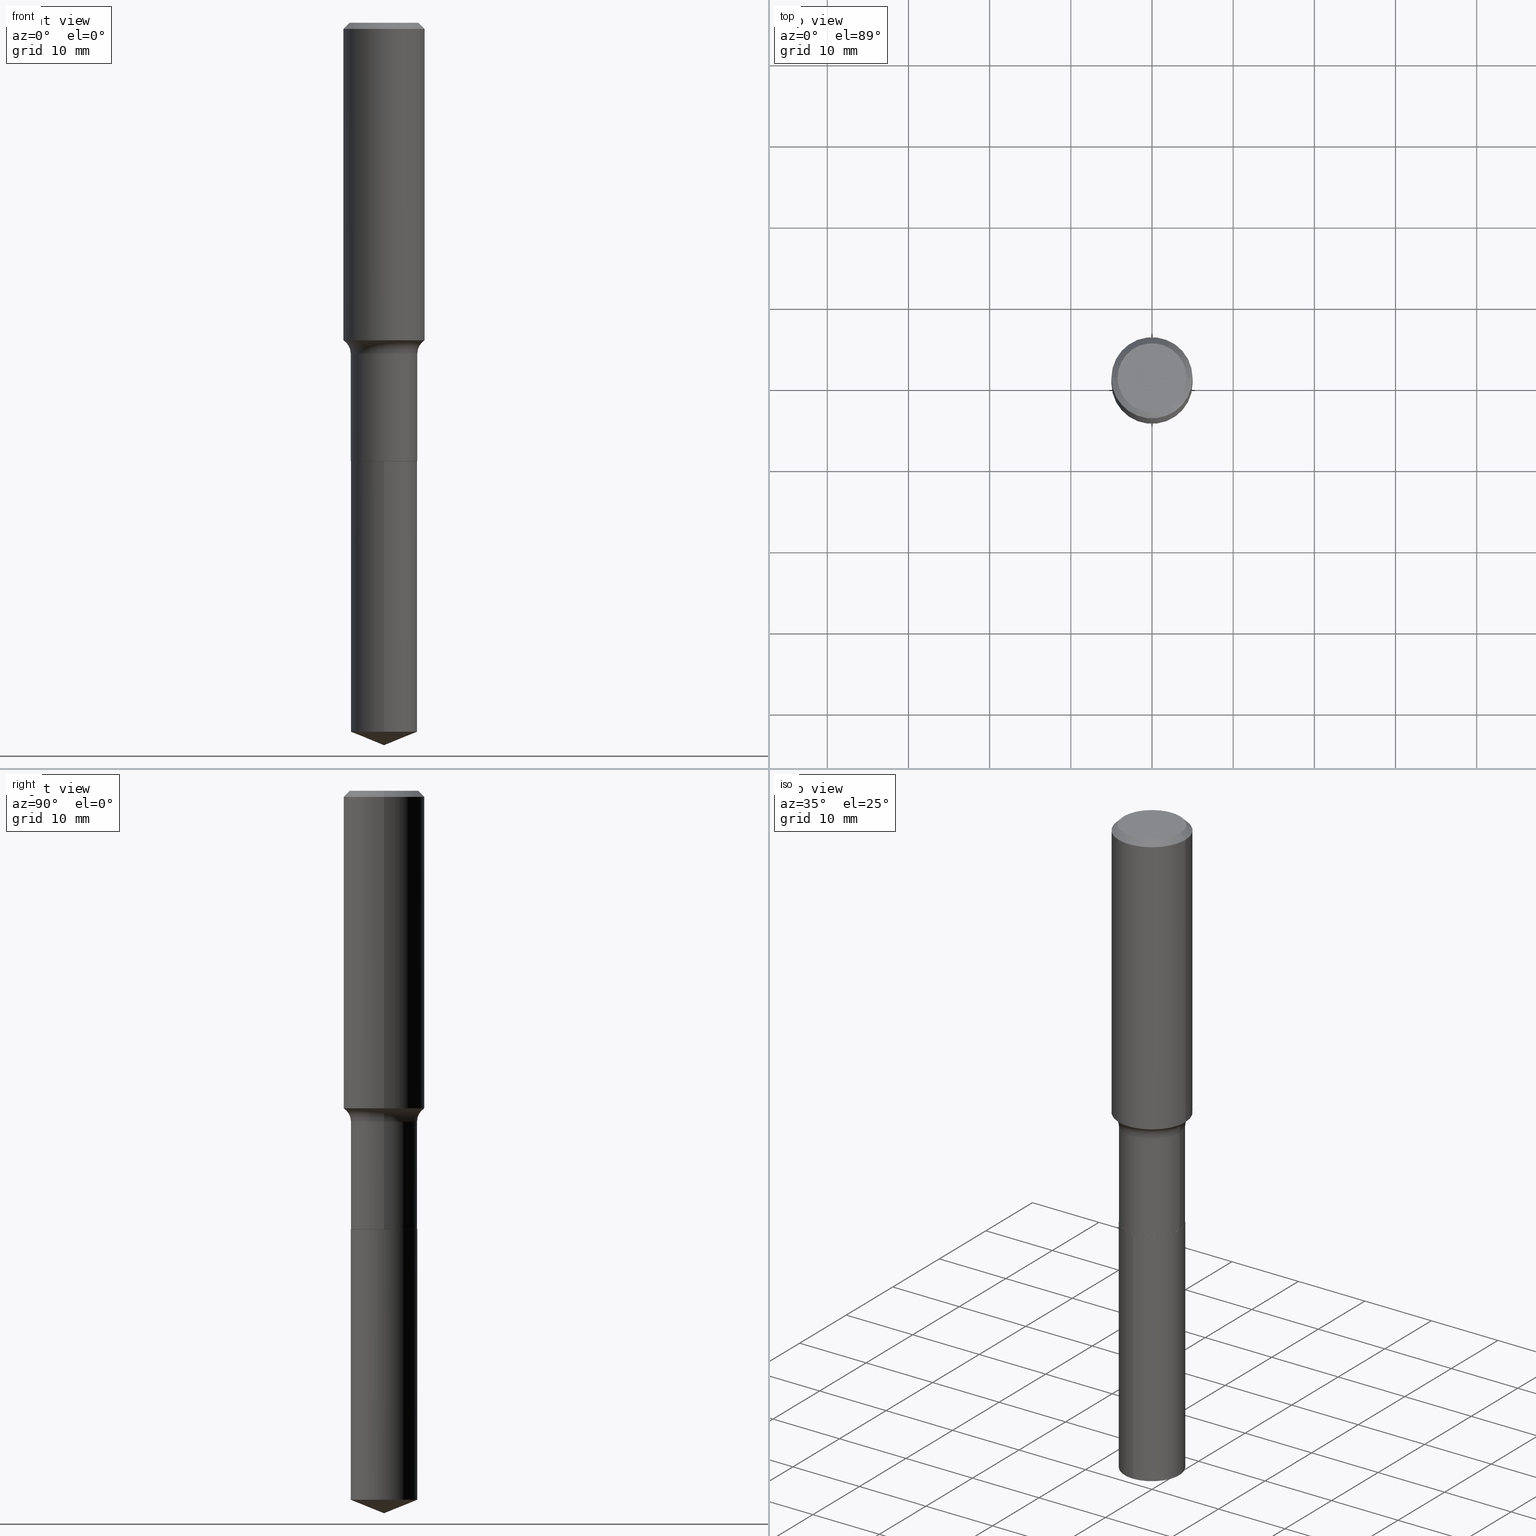
[diagram: canonical four-view strip — front | top / right | iso, engineering-drawing reading convention]
A machine part, canonical four-view strip (front | top / right | iso — engineering-drawing reading convention). The complete STEP part file that produces these views, byte-faithful:
ISO-10303-21;
HEADER;
FILE_DESCRIPTION (( 'STEP AP203' ),
    '1' );
FILE_NAME ('69172.STEP',
    '2024-04-19T17:19:06',
    ( '' ),
    ( '' ),
    'SwSTEP 2.0',
    'SolidWorks 2023',
    '' );
FILE_SCHEMA (( 'CONFIG_CONTROL_DESIGN' ));
ENDSEC;

DATA;
#1 = EDGE_CURVE ( 'NONE', #347, #216, #401, .T. ) ;
#2 =( CONVERSION_BASED_UNIT ( 'INCH', #226 ) LENGTH_UNIT ( ) NAMED_UNIT ( #299 ) );
#3 = CALENDAR_DATE ( 2024, 19, 4 ) ;
#4 = APPROVAL_PERSON_ORGANIZATION ( #56, #385, #276 ) ;
#5 = CYLINDRICAL_SURFACE ( 'NONE', #120, 0.1613999999999999879 ) ;
#6 = CC_DESIGN_PERSON_AND_ORGANIZATION_ASSIGNMENT ( #425, #234, ( #117 ) ) ;
#7 = APPLICATION_CONTEXT ( 'configuration controlled 3d designs of mechanical parts and assemblies' ) ;
#8 = CALENDAR_DATE ( 2024, 19, 4 ) ;
#9 = CARTESIAN_POINT ( 'NONE',  ( -8.770547093742795597E-28, 1.252320373310577024E-13, 35.86617874015747987 ) ) ;
#10 = APPROVAL_STATUS ( 'not_yet_approved' ) ;
#11 = CONICAL_SURFACE ( 'NONE', #181, 0.1968500000000000527, 0.7853981633974457255 ) ;
#12 = MANIFOLD_SOLID_BREP ( 'Body-Move/Copy2[1]', #199 ) ;
#13 = VECTOR ( 'NONE', #370, 39.37007874015748143 ) ;
#14 = DIRECTION ( 'NONE',  ( -2.445468806185136597E-29, 3.491481338843145583E-15, 1.000000000000000000 ) ) ;
#15 = DATE_TIME_ROLE ( 'classification_date' ) ;
#16 = CARTESIAN_POINT ( 'NONE',  ( 5.198822135068982087E-29, -7.422540178246643119E-15, -2.125899999999999679 ) ) ;
#17 = ORIENTED_EDGE ( 'NONE', *, *, #186, .T. ) ;
#18 = ORIENTED_EDGE ( 'NONE', *, *, #176, .F. ) ;
#19 = EDGE_CURVE ( 'NONE', #441, #140, #405, .T. ) ;
#20 = PLANE ( 'NONE',  #76 ) ;
#21 = CARTESIAN_POINT ( 'NONE',  ( 7.220858017463212113E-31, -1.030947152326916979E-16, -0.02952750000000020289 ) ) ;
#22 = MANIFOLD_SOLID_BREP ( 'Body-Move/Copy2[2]', #416 ) ;
#23 = CIRCLE ( 'NONE', #37, 0.1614000000000000157 ) ;
#24 = ORIENTED_EDGE ( 'NONE', *, *, #481, .T. ) ;
#25 = LINE ( 'NONE', #328, #94 ) ;
#26 = VERTEX_POINT ( 'NONE', #252 ) ;
#27 = CARTESIAN_POINT ( 'NONE',  ( 5.198822135068982087E-29, -7.422540178246643119E-15, -2.125899999999999679 ) ) ;
#28 = DIRECTION ( 'NONE',  ( -2.445468806185136597E-29, 3.491481338843145583E-15, 1.000000000000000000 ) ) ;
#29 = AXIS2_PLACEMENT_3D ( 'NONE', #464, #46, #129 ) ;
#30 = CC_DESIGN_APPROVAL ( #462, ( #242 ) ) ;
#31 = CC_DESIGN_PERSON_AND_ORGANIZATION_ASSIGNMENT ( #123, #89, ( #58 ) ) ;
#32 = CARTESIAN_POINT ( 'NONE',  ( 0.1968500000000000527, -1.477690918335233688E-15, -0.02952750000000020289 ) ) ;
#33 = DIRECTION ( 'NONE',  ( -2.445468806185136597E-29, 3.491481338843145583E-15, 1.000000000000000000 ) ) ;
#34 = EDGE_CURVE ( 'NONE', #306, #173, #138, .T. ) ;
#35 = CARTESIAN_POINT ( 'NONE',  ( 7.220858017463212113E-31, -1.030947152326916979E-16, -0.02952750000000020289 ) ) ;
#36 = ORIENTED_EDGE ( 'NONE', *, *, #396, .F. ) ;
#37 = AXIS2_PLACEMENT_3D ( 'NONE', #190, #33, #488 ) ;
#38 = DIRECTION ( 'NONE',  ( -2.445468806185136597E-29, 3.491481338843145583E-15, 1.000000000000000000 ) ) ;
#39 = ORIENTED_EDGE ( 'NONE', *, *, #80, .F. ) ;
#40 = LINE ( 'NONE', #111, #104 ) ;
#41 = DIRECTION ( 'NONE',  ( 1.000000000000000000, -6.982962677686267499E-15, 4.876294436782262290E-29 ) ) ;
#42 = AXIS2_PLACEMENT_3D ( 'NONE', #384, #14, #166 ) ;
#43 = AXIS2_PLACEMENT_3D ( 'NONE', #435, #107, #400 ) ;
#44 = EDGE_CURVE ( 'NONE', #207, #424, #474, .T. ) ;
#45 = CARTESIAN_POINT ( 'NONE',  ( -1.127050176178511266E-15, -0.1614000000000073987, -2.125899999999999235 ) ) ;
#46 = DIRECTION ( 'NONE',  ( -2.445468806185136597E-29, 3.491481338843145583E-15, 1.000000000000000000 ) ) ;
#47 = ORIENTED_EDGE ( 'NONE', *, *, #55, .T. ) ;
#48 = ORIENTED_EDGE ( 'NONE', *, *, #318, .T. ) ;
#49 = DIRECTION ( 'NONE',  ( 2.438088387897960049E-29, -3.491481338843145188E-15, -1.000000000000000000 ) ) ;
#50 = ORIENTED_EDGE ( 'NONE', *, *, #168, .F. ) ;
#51 = APPROVAL_DATE_TIME ( #386, #235 ) ;
#52 = AXIS2_PLACEMENT_3D ( 'NONE', #9, #170, #461 ) ;
#53 = AXIS2_PLACEMENT_3D ( 'NONE', #286, #446, #444 ) ;
#54 = CARTESIAN_POINT ( 'NONE',  ( 5.198822135068982087E-29, -7.422540178246643119E-15, -2.125899999999999679 ) ) ;
#55 = EDGE_CURVE ( 'NONE', #306, #301, #108, .T. ) ;
#56 = PERSON_AND_ORGANIZATION ( #478, #440 ) ;
#57 = CARTESIAN_POINT ( 'NONE',  ( -0.1608999999999999875, -6.279276916408641614E-15, -2.125899999999999679 ) ) ;
#58 = PRODUCT ( '69172', '69172', '', ( #468 ) ) ;
#59 = ORIENTED_EDGE ( 'NONE', *, *, #44, .F. ) ;
#60 = CYLINDRICAL_SURFACE ( 'NONE', #475, 0.1613999999999999602 ) ;
#61 = ORIENTED_EDGE ( 'NONE', *, *, #224, .F. ) ;
#62 = EDGE_CURVE ( 'NONE', #424, #207, #291, .T. ) ;
#63 = CARTESIAN_POINT ( 'NONE',  ( -0.1968500000000001082, 1.398703375343757985E-15, -9.682923725166787881E-30 ) ) ;
#64 = CONICAL_SURFACE ( 'NONE', #378, 97.44436430772901758, 1.186823891356147076 ) ;
#65 = CIRCLE ( 'NONE', #380, 0.1968500000000000527 ) ;
#66 = FACE_OUTER_BOUND ( 'NONE', #320, .T. ) ;
#67 = DIRECTION ( 'NONE',  ( -6.474490251793184940E-15, -0.9271838545667872022, 0.3746065934159125144 ) ) ;
#68 = DIRECTION ( 'NONE',  ( 6.588037525764796813E-15, 0.9271838545667896447, 0.3746065934159060196 ) ) ;
#69 = VECTOR ( 'NONE', #217, 39.37007874015748143 ) ;
#70 = LOCAL_TIME ( 13, 19, 6.000000000000000000, #315 ) ;
#71 = CARTESIAN_POINT ( 'NONE',  ( 0.000000000000000000, 0.000000000000000000, 0.000000000000000000 ) ) ;
#72 = ORIENTED_EDGE ( 'NONE', *, *, #176, .T. ) ;
#73 = EDGE_LOOP ( 'NONE', ( #381, #329, #183, #246 ) ) ;
#74 = LINE ( 'NONE', #225, #13 ) ;
#75 = ADVANCED_FACE ( 'NONE', ( #317 ), #20, .F. ) ;
#76 = AXIS2_PLACEMENT_3D ( 'NONE', #163, #172, #202 ) ;
#77 = AXIS2_PLACEMENT_3D ( 'NONE', #184, #479, #290 ) ;
#78 = APPLICATION_PROTOCOL_DEFINITION ( 'international standard', 'config_control_design', 1994, #368 ) ;
#79 = ORIENTED_EDGE ( 'NONE', *, *, #457, .F. ) ;
#80 = EDGE_CURVE ( 'NONE', #347, #248, #264, .T. ) ;
#81 = CARTESIAN_POINT ( 'NONE',  ( -1.127050176178479119E-15, -0.1614000000000120061, -3.438690167150205479 ) ) ;
#82 = AXIS2_PLACEMENT_3D ( 'NONE', #54, #271, #209 ) ;
#83 = DATE_AND_TIME ( #273, #188 ) ;
#84 = CIRCLE ( 'NONE', #161, 0.1968500000000000527 ) ;
#85 = CARTESIAN_POINT ( 'NONE',  ( -0.1968500000000000527, -1.340809783523211195E-15, -0.02952750000000020289 ) ) ;
#86 = SECURITY_CLASSIFICATION_LEVEL ( 'unclassified' ) ;
#87 = FACE_OUTER_BOUND ( 'NONE', #314, .T. ) ;
#88 = ORIENTED_EDGE ( 'NONE', *, *, #1, .T. ) ;
#89 = PERSON_AND_ORGANIZATION_ROLE ( 'design_owner' ) ;
#90 = DIRECTION ( 'NONE',  ( 1.000000000000000000, -6.982962677686264344E-15, 0.000000000000000000 ) ) ;
#91 = ADVANCED_FACE ( 'NONE', ( #305 ), #266, .T. ) ;
#92 = PERSON_AND_ORGANIZATION_ROLE ( 'design_supplier' ) ;
#93 = CIRCLE ( 'NONE', #365, 0.1613999999999999047 ) ;
#94 = VECTOR ( 'NONE', #394, 39.37007874015748143 ) ;
#95 = CARTESIAN_POINT ( 'NONE',  ( -1.127050176178511266E-15, -0.1614000000000073987, -2.125899999999999235 ) ) ;
#96 = ORIENTED_EDGE ( 'NONE', *, *, #168, .T. ) ;
#97 = CARTESIAN_POINT ( 'NONE',  ( 5.198822135068982087E-29, -7.422540178246643119E-15, -2.125899999999999679 ) ) ;
#98 = ORIENTED_EDGE ( 'NONE', *, *, #150, .F. ) ;
#99 = ADVANCED_FACE ( 'NONE', ( #277 ), #5, .T. ) ;
#100 = DIRECTION ( 'NONE',  ( 2.445468806185136597E-29, -3.491481338843145583E-15, -1.000000000000000000 ) ) ;
#101 = ORIENTED_EDGE ( 'NONE', *, *, #295, .F. ) ;
#102 = DIRECTION ( 'NONE',  ( -2.445468806185136597E-29, 3.491481338843145583E-15, 1.000000000000000000 ) ) ;
#103 = CIRCLE ( 'NONE', #148, 0.1613999999999999879 ) ;
#104 = VECTOR ( 'NONE', #195, 39.37007874015748143 ) ;
#105 = DIRECTION ( 'NONE',  ( -2.445468806185136597E-29, 3.491481338843145583E-15, 1.000000000000000000 ) ) ;
#106 = DIRECTION ( 'NONE',  ( 1.000000000000000000, -6.982962677686262766E-15, 0.000000000000000000 ) ) ;
#107 = DIRECTION ( 'NONE',  ( -2.445359563184350382E-29, 3.491637781037997062E-15, 1.000000000000000000 ) ) ;
#108 = LINE ( 'NONE', #174, #160 ) ;
#109 = DIRECTION ( 'NONE',  ( 1.000000000000000000, -6.982962677686262766E-15, 0.000000000000000000 ) ) ;
#110 = ADVANCED_FACE ( 'NONE', ( #236 ), #64, .T. ) ;
#111 = CARTESIAN_POINT ( 'NONE',  ( 0.1968500000000001082, -1.374596203102542397E-15, 9.598753983154305062E-30 ) ) ;
#112 = VECTOR ( 'NONE', #379, 39.37007874015748143 ) ;
#113 = VECTOR ( 'NONE', #67, 39.37007874015748143 ) ;
#114 = ORIENTED_EDGE ( 'NONE', *, *, #431, .F. ) ;
#115 = DIRECTION ( 'NONE',  ( 1.000000000000000000, -6.982962677686265922E-15, 4.883557194083112901E-29 ) ) ;
#116 = ORIENTED_EDGE ( 'NONE', *, *, #34, .T. ) ;
#117 = PRODUCT_DEFINITION ( 'UNKNOWN', '', #242, #389 ) ;
#118 = DIRECTION ( 'NONE',  ( -1.000000000000000000, 7.105427357601005014E-15, 0.000000000000000000 ) ) ;
#119 = ADVANCED_FACE ( 'NONE', ( #428 ), #136, .F. ) ;
#120 = AXIS2_PLACEMENT_3D ( 'NONE', #16, #352, #351 ) ;
#121 = LOCAL_TIME ( 13, 19, 6.000000000000000000, #124 ) ;
#122 = ADVANCED_FACE ( 'NONE', ( #274 ), #211, .F. ) ;
#123 = PERSON_AND_ORGANIZATION ( #478, #440 ) ;
#124 = COORDINATED_UNIVERSAL_TIME_OFFSET ( 5, 0, .BEHIND. ) ;
#125 = DIRECTION ( 'NONE',  ( 6.982962677686265922E-15, 1.000000000000000000, -3.491637781037997457E-15 ) ) ;
#126 = AXIS2_PLACEMENT_3D ( 'NONE', #355, #472, #203 ) ;
#127 = VECTOR ( 'NONE', #194, 39.37007874015748143 ) ;
#128 = PERSON_AND_ORGANIZATION_ROLE ( 'creator' ) ;
#129 = DIRECTION ( 'NONE',  ( 1.000000000000000000, -6.982962677686265133E-15, 0.000000000000000000 ) ) ;
#130 = ORIENTED_EDGE ( 'NONE', *, *, #403, .F. ) ;
#131 = PERSON_AND_ORGANIZATION ( #478, #440 ) ;
#132 = ADVANCED_FACE ( 'NONE', ( #319 ), #279, .T. ) ;
#133 = CARTESIAN_POINT ( 'NONE',  ( -5.008488096090108951E-47, 7.150793614331948590E-33, 2.048068690724054183E-18 ) ) ;
#134 = ORIENTED_EDGE ( 'NONE', *, *, #62, .T. ) ;
#135 = PERSON_AND_ORGANIZATION ( #478, #440 ) ;
#136 = PLANE ( 'NONE',  #373 ) ;
#137 = VERTEX_POINT ( 'NONE', #95 ) ;
#138 = CIRCLE ( 'NONE', #412, 0.1673224999999999851 ) ;
#139 = DIRECTION ( 'NONE',  ( -6.982962677686266711E-15, -1.000000000000000000, 3.385189583227092077E-15 ) ) ;
#140 = VERTEX_POINT ( 'NONE', #421 ) ;
#141 = ADVANCED_FACE ( 'NONE', ( #87 ), #239, .T. ) ;
#142 = CARTESIAN_POINT ( 'NONE',  ( 8.568295373441645346E-29, -1.223434962097903768E-14, -3.503899999999999793 ) ) ;
#143 = EDGE_LOOP ( 'NONE', ( #167, #134, #432, #130 ) ) ;
#144 = DIRECTION ( 'NONE',  ( -2.445359563184350382E-29, 3.491637781037997062E-15, 1.000000000000000000 ) ) ;
#145 = VERTEX_POINT ( 'NONE', #85 ) ;
#146 = FACE_OUTER_BOUND ( 'NONE', #289, .T. ) ;
#147 = AXIS2_PLACEMENT_3D ( 'NONE', #27, #189, #185 ) ;
#148 = AXIS2_PLACEMENT_3D ( 'NONE', #476, #144, #139 ) ;
#149 = EDGE_LOOP ( 'NONE', ( #429, #116 ) ) ;
#150 = EDGE_CURVE ( 'NONE', #399, #216, #93, .T. ) ;
#151 = CARTESIAN_POINT ( 'NONE',  ( 8.568763925768371562E-29, -1.223368446005496745E-14, -3.503899999999999793 ) ) ;
#152 = FACE_OUTER_BOUND ( 'NONE', #251, .T. ) ;
#153 = EDGE_LOOP ( 'NONE', ( #343, #59, #96, #372 ) ) ;
#154 = LINE ( 'NONE', #342, #127 ) ;
#155 = VECTOR ( 'NONE', #349, 39.37007874015748143 ) ;
#156 = EDGE_CURVE ( 'NONE', #140, #347, #383, .T. ) ;
#157 = CARTESIAN_POINT ( 'NONE',  ( 0.1613999999999999602, -1.127050176178562936E-15, 7.870149316134637915E-30 ) ) ;
#158 = DIRECTION ( 'NONE',  ( 1.000000000000000000, -6.982962677686265922E-15, 4.883557194083112901E-29 ) ) ;
#159 =( NAMED_UNIT ( * ) SI_UNIT ( $, .STERADIAN. ) SOLID_ANGLE_UNIT ( ) );
#160 = VECTOR ( 'NONE', #392, 39.37007874015748143 ) ;
#161 = AXIS2_PLACEMENT_3D ( 'NONE', #35, #296, #230 ) ;
#162 = DATE_AND_TIME ( #3, #121 ) ;
#163 = CARTESIAN_POINT ( 'NONE',  ( 5.198822135068982087E-29, -7.422540178246643119E-15, -2.125899999999999679 ) ) ;
#164 = ADVANCED_BREP_SHAPE_REPRESENTATION ( '69172', ( #12, #22, #366 ), #422 ) ;
#165 = COORDINATED_UNIVERSAL_TIME_OFFSET ( 5, 0, .BEHIND. ) ;
#166 = DIRECTION ( 'NONE',  ( 1.000000000000000000, -6.982962677686265922E-15, 0.000000000000000000 ) ) ;
#167 = ORIENTED_EDGE ( 'NONE', *, *, #288, .F. ) ;
#168 = EDGE_CURVE ( 'NONE', #207, #399, #338, .T. ) ;
#169 = APPROVAL_ROLE ( '' ) ;
#170 = DIRECTION ( 'NONE',  ( -2.445359563184350382E-29, 3.491637781037997062E-15, 1.000000000000000000 ) ) ;
#171 = APPROVAL_STATUS ( 'not_yet_approved' ) ;
#172 = DIRECTION ( 'NONE',  ( -2.438088387897960049E-29, 3.491481338843145188E-15, 1.000000000000000000 ) ) ;
#173 = VERTEX_POINT ( 'NONE', #241 ) ;
#174 = CARTESIAN_POINT ( 'NONE',  ( 0.1968500000000000527, -1.453583746094018101E-15, -0.02952750000000020289 ) ) ;
#175 = EDGE_LOOP ( 'NONE', ( #259, #437, #408, #50 ) ) ;
#176 = EDGE_CURVE ( 'NONE', #140, #441, #180, .T. ) ;
#177 = DIRECTION ( 'NONE',  ( 2.445359563184349822E-29, -3.491637781037997457E-15, -1.000000000000000000 ) ) ;
#178 = VERTEX_POINT ( 'NONE', #81 ) ;
#179 = ORIENTED_EDGE ( 'NONE', *, *, #480, .F. ) ;
#180 = CIRCLE ( 'NONE', #82, 0.1608999999999999875 ) ;
#181 = AXIS2_PLACEMENT_3D ( 'NONE', #220, #100, #247 ) ;
#182 = CARTESIAN_POINT ( 'NONE',  ( -1.001697619218021790E-46, 1.430158722866389718E-32, 4.096137381448108366E-18 ) ) ;
#183 = ORIENTED_EDGE ( 'NONE', *, *, #263, .F. ) ;
#184 = CARTESIAN_POINT ( 'NONE',  ( 0.000000000000000000, 0.000000000000000000, 0.000000000000000000 ) ) ;
#185 = DIRECTION ( 'NONE',  ( 1.000000000000000000, -6.982962677686262766E-15, 0.000000000000000000 ) ) ;
#186 = EDGE_CURVE ( 'NONE', #178, #137, #232, .T. ) ;
#187 = DIRECTION ( 'NONE',  ( -6.982962677686266711E-15, -1.000000000000000000, 3.385189583227092077E-15 ) ) ;
#188 = LOCAL_TIME ( 13, 19, 6.000000000000000000, #427 ) ;
#189 = DIRECTION ( 'NONE',  ( -2.445468806185136597E-29, 3.491481338843145583E-15, 1.000000000000000000 ) ) ;
#190 = CARTESIAN_POINT ( 'NONE',  ( 5.197599400665889285E-29, -7.420794437577220826E-15, -2.125399999999999956 ) ) ;
#191 = DIRECTION ( 'NONE',  ( -2.445359563184350382E-29, 3.491637781037997062E-15, 1.000000000000000000 ) ) ;
#192 = AXIS2_PLACEMENT_3D ( 'NONE', #453, #375, #115 ) ;
#193 = ORIENTED_EDGE ( 'NONE', *, *, #364, .F. ) ;
#194 = DIRECTION ( 'NONE',  ( -2.445359563184350382E-29, 3.491637781037997457E-15, 1.000000000000000000 ) ) ;
#195 = DIRECTION ( 'NONE',  ( -2.445468806185136877E-29, 3.491481338843145188E-15, 1.000000000000000000 ) ) ;
#196 = ORIENTED_EDGE ( 'NONE', *, *, #44, .T. ) ;
#197 = VERTEX_POINT ( 'NONE', #213 ) ;
#198 = ADVANCED_FACE ( 'NONE', ( #146 ), #363, .T. ) ;
#199 = CLOSED_SHELL ( 'NONE', ( #99, #91, #110, #198, #119 ) ) ;
#200 = CC_DESIGN_APPROVAL ( #385, ( #430 ) ) ;
#201 = APPLICATION_PROTOCOL_DEFINITION ( 'international standard', 'config_control_design', 1994, #7 ) ;
#202 = DIRECTION ( 'NONE',  ( 1.000000000000000000, -6.982962677686265922E-15, 4.876176775795935793E-29 ) ) ;
#203 = DIRECTION ( 'NONE',  ( 1.000000000000000000, -6.982962677686270655E-15, 0.000000000000000000 ) ) ;
#204 = EDGE_CURVE ( 'NONE', #26, #137, #103, .T. ) ;
#205 = DIRECTION ( 'NONE',  ( 1.000000000000000000, -6.982962677686266711E-15, 4.876176775795935793E-29 ) ) ;
#206 = ORIENTED_EDGE ( 'NONE', *, *, #229, .F. ) ;
#207 = VERTEX_POINT ( 'NONE', #322 ) ;
#208 = VECTOR ( 'NONE', #452, 39.37007874015748143 ) ;
#209 = DIRECTION ( 'NONE',  ( 1.000000000000000000, -6.982962677686262766E-15, 0.000000000000000000 ) ) ;
#210 = ADVANCED_FACE ( 'NONE', ( #66 ), #11, .T. ) ;
#211 = PLANE ( 'NONE',  #454 ) ;
#212 = CARTESIAN_POINT ( 'NONE',  ( -0.1613999999999999602, 1.146815975516801417E-15, -7.939161235671416085E-30 ) ) ;
#213 = CARTESIAN_POINT ( 'NONE',  ( 8.568295373441645346E-29, -1.223434962097903768E-14, -3.503899999999999793 ) ) ;
#214 = LOCAL_TIME ( 13, 19, 6.000000000000000000, #348 ) ;
#215 = DIRECTION ( 'NONE',  ( -2.445468806185136877E-29, 3.491481338843145188E-15, 1.000000000000000000 ) ) ;
#216 = VERTEX_POINT ( 'NONE', #404 ) ;
#217 = DIRECTION ( 'NONE',  ( -2.445468806185136877E-29, 3.491481338843145188E-15, 1.000000000000000000 ) ) ;
#218 = DIRECTION ( 'NONE',  ( 1.000000000000000000, -6.982962677686266711E-15, 0.000000000000000000 ) ) ;
#219 = ADVANCED_FACE ( 'NONE', ( #402 ), #302, .T. ) ;
#220 = CARTESIAN_POINT ( 'NONE',  ( 7.220858017463212113E-31, -1.030947152326916979E-16, -0.02952750000000020289 ) ) ;
#221 = EDGE_LOOP ( 'NONE', ( #282, #18 ) ) ;
#222 = FACE_OUTER_BOUND ( 'NONE', #406, .T. ) ;
#223 = LOCAL_TIME ( 13, 19, 6.000000000000000000, #165 ) ;
#224 = EDGE_CURVE ( 'NONE', #197, #178, #433, .T. ) ;
#225 = CARTESIAN_POINT ( 'NONE',  ( -0.1968500000000000527, 1.271501487869850317E-15, -0.02952750000000020289 ) ) ;
#226 = LENGTH_MEASURE_WITH_UNIT ( LENGTH_MEASURE( 0.02539999999999999897 ), #344 );
#227 = CC_DESIGN_APPROVAL ( #235, ( #117 ) ) ;
#228 = FACE_OUTER_BOUND ( 'NONE', #153, .T. ) ;
#229 = EDGE_CURVE ( 'NONE', #301, #145, #65, .T. ) ;
#230 = DIRECTION ( 'NONE',  ( 1.000000000000000000, -6.982962677686266711E-15, 0.000000000000000000 ) ) ;
#231 = PERSON_AND_ORGANIZATION ( #478, #440 ) ;
#232 = LINE ( 'NONE', #45, #155 ) ;
#233 = AXIS2_PLACEMENT_3D ( 'NONE', #262, #191, #268 ) ;
#234 = PERSON_AND_ORGANIZATION_ROLE ( 'creator' ) ;
#235 = APPROVAL ( #10, 'UNSPECIFIED' ) ;
#236 = FACE_OUTER_BOUND ( 'NONE', #438, .T. ) ;
#237 = EDGE_LOOP ( 'NONE', ( #309, #72, #311, #39 ) ) ;
#238 = APPROVAL_STATUS ( 'not_yet_approved' ) ;
#239 = CYLINDRICAL_SURFACE ( 'NONE', #420, 0.1968500000000001082 ) ;
#240 = ORIENTED_EDGE ( 'NONE', *, *, #229, .T. ) ;
#241 = CARTESIAN_POINT ( 'NONE',  ( -0.1673224999999999851, 1.219954130253505460E-15, 4.096137381439757534E-18 ) ) ;
#242 = PRODUCT_DEFINITION_FORMATION_WITH_SPECIFIED_SOURCE ( 'ANY', '', #58, .NOT_KNOWN. ) ;
#243 = DATE_AND_TIME ( #8, #223 ) ;
#244 = DIRECTION ( 'NONE',  ( -6.982962677686265133E-15, -1.000000000000000000, 3.498761904101806258E-15 ) ) ;
#245 = CARTESIAN_POINT ( 'NONE',  ( 0.000000000000000000, 0.000000000000000000, 0.000000000000000000 ) ) ;
#246 = ORIENTED_EDGE ( 'NONE', *, *, #186, .F. ) ;
#247 = DIRECTION ( 'NONE',  ( -1.000000000000000000, 6.982962677686266711E-15, 0.000000000000000000 ) ) ;
#248 = VERTEX_POINT ( 'NONE', #486 ) ;
#249 = CIRCLE ( 'NONE', #374, 0.07799999999999999989 ) ;
#250 = LINE ( 'NONE', #151, #398 ) ;
#251 = EDGE_LOOP ( 'NONE', ( #477, #47, #240, #179 ) ) ;
#252 = CARTESIAN_POINT ( 'NONE',  ( 1.146815975516885825E-15, 0.1613999999999925772, -2.125900000000000567 ) ) ;
#253 = DIRECTION ( 'NONE',  ( -2.445468806185136597E-29, 3.491481338843145583E-15, 1.000000000000000000 ) ) ;
#254 = DIRECTION ( 'NONE',  ( 1.000000000000000000, -6.982962677686267499E-15, 4.876294436782262290E-29 ) ) ;
#255 = CARTESIAN_POINT ( 'NONE',  ( 3.925221980807762664E-29, -5.604176696977132426E-15, -1.605099999999999749 ) ) ;
#256 = AXIS2_PLACEMENT_3D ( 'NONE', #269, #105, #258 ) ;
#257 = CIRCLE ( 'NONE', #53, 0.1613999999999999047 ) ;
#258 = DIRECTION ( 'NONE',  ( 1.000000000000000000, -6.982962677686265922E-15, 0.000000000000000000 ) ) ;
#259 = ORIENTED_EDGE ( 'NONE', *, *, #62, .F. ) ;
#260 = CARTESIAN_POINT ( 'NONE',  ( -0.1968500000000001915, -3.977228227157489281E-15, -1.539728006761304391 ) ) ;
#261 = ORIENTED_EDGE ( 'NONE', *, *, #263, .T. ) ;
#262 = CARTESIAN_POINT ( 'NONE',  ( 8.409066124764119414E-29, -1.200632792444349016E-14, -3.438690167150205923 ) ) ;
#263 = EDGE_CURVE ( 'NONE', #137, #26, #292, .T. ) ;
#264 = CIRCLE ( 'NONE', #29, 0.1614000000000000157 ) ;
#265 = AXIS2_PLACEMENT_3D ( 'NONE', #455, #298, #336 ) ;
#266 = CONICAL_SURFACE ( 'NONE', #52, 97.44436430772901758, 1.186823891356147076 ) ;
#267 = CARTESIAN_POINT ( 'NONE',  ( -1.001697619218021790E-46, 1.430158722866389718E-32, 4.096137381448108366E-18 ) ) ;
#268 = DIRECTION ( 'NONE',  ( -6.982962677686266711E-15, -1.000000000000000000, 3.385189583227092077E-15 ) ) ;
#269 = CARTESIAN_POINT ( 'NONE',  ( 3.765356810544387241E-29, -5.375931602501247069E-15, -1.539728006761304391 ) ) ;
#270 = APPROVAL_DATE_TIME ( #303, #385 ) ;
#271 = DIRECTION ( 'NONE',  ( -2.445468806185136597E-29, 3.491481338843145583E-15, 1.000000000000000000 ) ) ;
#272 = EDGE_CURVE ( 'NONE', #441, #248, #25, .T. ) ;
#273 = CALENDAR_DATE ( 2024, 19, 4 ) ;
#274 = FACE_OUTER_BOUND ( 'NONE', #149, .T. ) ;
#275 = CIRCLE ( 'NONE', #284, 0.1673224999999999851 ) ;
#276 = APPROVAL_ROLE ( '' ) ;
#277 = FACE_OUTER_BOUND ( 'NONE', #73, .T. ) ;
#278 = ORIENTED_EDGE ( 'NONE', *, *, #316, .F. ) ;
#279 = CYLINDRICAL_SURFACE ( 'NONE', #359, 0.1968500000000001082 ) ;
#280 = APPROVAL_ROLE ( '' ) ;
#281 = DIRECTION ( 'NONE',  ( -2.445468806185136597E-29, 3.491481338843145583E-15, 1.000000000000000000 ) ) ;
#282 = ORIENTED_EDGE ( 'NONE', *, *, #19, .F. ) ;
#283 = ADVANCED_FACE ( 'NONE', ( #331 ), #60, .T. ) ;
#284 = AXIS2_PLACEMENT_3D ( 'NONE', #182, #102, #254 ) ;
#285 = CARTESIAN_POINT ( 'NONE',  ( 5.198822135068982087E-29, -7.422540178246643119E-15, -2.125899999999999679 ) ) ;
#286 = CARTESIAN_POINT ( 'NONE',  ( 3.925221980807762664E-29, -5.604176696977132426E-15, -1.605099999999999749 ) ) ;
#287 = ORIENTED_EDGE ( 'NONE', *, *, #55, .F. ) ;
#288 = EDGE_CURVE ( 'NONE', #424, #145, #397, .T. ) ;
#289 = EDGE_LOOP ( 'NONE', ( #114, #334, #17, #395 ) ) ;
#290 = DIRECTION ( 'NONE',  ( 1.000000000000000000, -6.982962677686265133E-15, 4.876176775795935232E-29 ) ) ;
#291 = CIRCLE ( 'NONE', #42, 0.1968500000000002192 ) ;
#292 = CIRCLE ( 'NONE', #489, 0.1613999999999999879 ) ;
#293 = DIRECTION ( 'NONE',  ( -2.445468806185136597E-29, 3.491481338843145583E-15, 1.000000000000000000 ) ) ;
#294 = DIRECTION ( 'NONE',  ( -2.445359563184350382E-29, 3.491637781037997062E-15, 1.000000000000000000 ) ) ;
#295 = EDGE_CURVE ( 'NONE', #173, #306, #275, .T. ) ;
#296 = DIRECTION ( 'NONE',  ( -2.445468806185136597E-29, 3.491481338843145583E-15, 1.000000000000000000 ) ) ;
#297 = CIRCLE ( 'NONE', #233, 0.1613999999999999879 ) ;
#298 = DIRECTION ( 'NONE',  ( 2.445468806185136597E-29, -3.491481338843145583E-15, -1.000000000000000000 ) ) ;
#299 = DIMENSIONAL_EXPONENTS ( 1.000000000000000000, 0.000000000000000000, 0.000000000000000000, 0.000000000000000000, 0.000000000000000000, 0.000000000000000000, 0.000000000000000000 ) ;
#300 =( NAMED_UNIT ( * ) PLANE_ANGLE_UNIT ( ) SI_UNIT ( $, .RADIAN. ) );
#301 = VERTEX_POINT ( 'NONE', #32 ) ;
#302 = CONICAL_SURFACE ( 'NONE', #463, 0.1608999999999999875, 0.7853981633975849475 ) ;
#303 = DATE_AND_TIME ( #382, #70 ) ;
#304 = PRODUCT_RELATED_PRODUCT_CATEGORY ( 'detail', '', ( #58 ) ) ;
#305 = FACE_OUTER_BOUND ( 'NONE', #467, .T. ) ;
#306 = VERTEX_POINT ( 'NONE', #325 ) ;
#307 = APPROVAL_DATE_TIME ( #83, #462 ) ;
#308 = DIRECTION ( 'NONE',  ( -1.000000000000000000, 6.982962677686265922E-15, -4.876176775795935793E-29 ) ) ;
#309 = ORIENTED_EDGE ( 'NONE', *, *, #156, .F. ) ;
#310 = AXIS2_PLACEMENT_3D ( 'NONE', #333, #367, #358 ) ;
#311 = ORIENTED_EDGE ( 'NONE', *, *, #272, .T. ) ;
#312 = CONICAL_SURFACE ( 'NONE', #147, 0.1608999999999999875, 0.7853981633975849475 ) ;
#313 = CARTESIAN_POINT ( 'NONE',  ( 5.198822135068982087E-29, -7.422540178246643119E-15, -2.125899999999999679 ) ) ;
#314 = EDGE_LOOP ( 'NONE', ( #196, #323, #206, #79 ) ) ;
#315 = COORDINATED_UNIVERSAL_TIME_OFFSET ( 5, 0, .BEHIND. ) ;
#316 = EDGE_CURVE ( 'NONE', #216, #399, #257, .T. ) ;
#317 = FACE_OUTER_BOUND ( 'NONE', #221, .T. ) ;
#318 = EDGE_CURVE ( 'NONE', #197, #434, #250, .T. ) ;
#319 = FACE_OUTER_BOUND ( 'NONE', #143, .T. ) ;
#320 = EDGE_LOOP ( 'NONE', ( #287, #101, #473, #465 ) ) ;
#321 = PRODUCT_DEFINITION_SHAPE ( 'NONE', 'NONE',  #117 ) ;
#322 = CARTESIAN_POINT ( 'NONE',  ( 0.1968500000000001915, -6.750527805603790255E-15, -1.539728006761304391 ) ) ;
#323 = ORIENTED_EDGE ( 'NONE', *, *, #288, .T. ) ;
#324 = ADVANCED_FACE ( 'NONE', ( #222 ), #361, .T. ) ;
#325 = CARTESIAN_POINT ( 'NONE',  ( 0.1673224999999999851, -1.300749711163072594E-15, 4.096137381456741925E-18 ) ) ;
#326 = ORIENTED_EDGE ( 'NONE', *, *, #318, .F. ) ;
#327 = ORIENTED_EDGE ( 'NONE', *, *, #80, .T. ) ;
#328 = CARTESIAN_POINT ( 'NONE',  ( 0.1608999999999999875, -8.546098873086362259E-15, -2.125899999999999679 ) ) ;
#329 = ORIENTED_EDGE ( 'NONE', *, *, #431, .T. ) ;
#330 = APPROVAL_PERSON_ORGANIZATION ( #135, #235, #280 ) ;
#331 = FACE_OUTER_BOUND ( 'NONE', #451, .T. ) ;
#332 = EDGE_CURVE ( 'NONE', #434, #178, #449, .T. ) ;
#333 = CARTESIAN_POINT ( 'NONE',  ( 5.198822135068982087E-29, -7.422540178246643119E-15, -2.125899999999999679 ) ) ;
#334 = ORIENTED_EDGE ( 'NONE', *, *, #332, .T. ) ;
#335 = ORIENTED_EDGE ( 'NONE', *, *, #396, .T. ) ;
#336 = DIRECTION ( 'NONE',  ( -1.000000000000000000, 6.982962677686266711E-15, 0.000000000000000000 ) ) ;
#337 = ORIENTED_EDGE ( 'NONE', *, *, #224, .T. ) ;
#338 = CIRCLE ( 'NONE', #126, 0.07799999999999999989 ) ;
#339 = CARTESIAN_POINT ( 'NONE',  ( 0.1613999999999999047, -6.731226873155694573E-15, -1.605099999999999749 ) ) ;
#340 = ADVANCED_FACE ( 'NONE', ( #362 ), #312, .T. ) ;
#341 = ORIENTED_EDGE ( 'NONE', *, *, #19, .T. ) ;
#342 = CARTESIAN_POINT ( 'NONE',  ( 1.146815975516853285E-15, 0.1613999999999925772, -2.125900000000000567 ) ) ;
#343 = ORIENTED_EDGE ( 'NONE', *, *, #487, .F. ) ;
#344 =( LENGTH_UNIT ( ) NAMED_UNIT ( * ) SI_UNIT ( $, .METRE. ) );
#345 = PERSON_AND_ORGANIZATION ( #478, #440 ) ;
#346 = CONICAL_SURFACE ( 'NONE', #265, 0.1968500000000000527, 0.7853981633974457255 ) ;
#347 = VERTEX_POINT ( 'NONE', #483 ) ;
#348 = COORDINATED_UNIVERSAL_TIME_OFFSET ( 5, 0, .BEHIND. ) ;
#349 = DIRECTION ( 'NONE',  ( -2.445359563184350382E-29, 3.491637781037997457E-15, 1.000000000000000000 ) ) ;
#350 = PERSON_AND_ORGANIZATION ( #478, #440 ) ;
#351 = DIRECTION ( 'NONE',  ( -6.982962677686266711E-15, -1.000000000000000000, 3.385189583227092077E-15 ) ) ;
#352 = DIRECTION ( 'NONE',  ( -2.445359563184350382E-29, 3.491637781037997062E-15, 1.000000000000000000 ) ) ;
#353 = EDGE_LOOP ( 'NONE', ( #261, #411 ) ) ;
#354 = DATE_TIME_ROLE ( 'creation_date' ) ;
#355 = CARTESIAN_POINT ( 'NONE',  ( 0.2393999999999999462, -7.275897962015224197E-15, -1.605099999999999749 ) ) ;
#356 = DIRECTION ( 'NONE',  ( -2.445359563184350382E-29, 3.491637781037997062E-15, 1.000000000000000000 ) ) ;
#357 = CC_DESIGN_PERSON_AND_ORGANIZATION_ASSIGNMENT ( #350, #128, ( #242 ) ) ;
#358 = DIRECTION ( 'NONE',  ( -6.982962677686266711E-15, -1.000000000000000000, 3.385189583227092077E-15 ) ) ;
#359 = AXIS2_PLACEMENT_3D ( 'NONE', #418, #281, #423 ) ;
#360 = TOROIDAL_SURFACE ( 'NONE', #414, 0.2393999999999999462, 0.07800000000000001377 ) ;
#361 = CYLINDRICAL_SURFACE ( 'NONE', #77, 0.1613999999999999602 ) ;
#362 = FACE_OUTER_BOUND ( 'NONE', #484, .T. ) ;
#363 = CYLINDRICAL_SURFACE ( 'NONE', #310, 0.1613999999999999879 ) ;
#364 = EDGE_CURVE ( 'NONE', #178, #434, #297, .T. ) ;
#365 = AXIS2_PLACEMENT_3D ( 'NONE', #469, #426, #90 ) ;
#366 = AXIS2_PLACEMENT_3D ( 'NONE', #71, #390, #470 ) ;
#367 = DIRECTION ( 'NONE',  ( -2.445359563184350382E-29, 3.491637781037997062E-15, 1.000000000000000000 ) ) ;
#368 = APPLICATION_CONTEXT ( 'configuration controlled 3d designs of mechanical parts and assemblies' ) ;
#369 = ORIENTED_EDGE ( 'NONE', *, *, #1, .F. ) ;
#370 = DIRECTION ( 'NONE',  ( -0.7071067811865456854, 2.468850131082237733E-15, -0.7071067811865493491 ) ) ;
#371 = CC_DESIGN_PERSON_AND_ORGANIZATION_ASSIGNMENT ( #131, #92, ( #242 ) ) ;
#372 = ORIENTED_EDGE ( 'NONE', *, *, #150, .T. ) ;
#373 = AXIS2_PLACEMENT_3D ( 'NONE', #313, #177, #125 ) ;
#374 = AXIS2_PLACEMENT_3D ( 'NONE', #491, #413, #118 ) ;
#375 = DIRECTION ( 'NONE',  ( -2.445468806185136597E-29, 3.491481338843145583E-15, 1.000000000000000000 ) ) ;
#376 = CARTESIAN_POINT ( 'NONE',  ( 0.1608999999999999875, -8.546098873086362259E-15, -2.125899999999999679 ) ) ;
#377 = PERSON_AND_ORGANIZATION_ROLE ( 'classification_officer' ) ;
#378 = AXIS2_PLACEMENT_3D ( 'NONE', #471, #356, #244 ) ;
#379 = DIRECTION ( 'NONE',  ( -0.7071067811866441621, 7.493145998870704414E-15, 0.7071067811864508723 ) ) ;
#380 = AXIS2_PLACEMENT_3D ( 'NONE', #21, #28, #218 ) ;
#381 = ORIENTED_EDGE ( 'NONE', *, *, #364, .T. ) ;
#382 = CALENDAR_DATE ( 2024, 19, 4 ) ;
#383 = LINE ( 'NONE', #57, #112 ) ;
#384 = CARTESIAN_POINT ( 'NONE',  ( 3.765356810544387241E-29, -5.375931602501247069E-15, -1.539728006761304391 ) ) ;
#385 = APPROVAL ( #171, 'UNSPECIFIED' ) ;
#386 = DATE_AND_TIME ( #459, #214 ) ;
#387 = DIRECTION ( 'NONE',  ( -2.445468806185136597E-29, 3.491481338843145583E-15, 1.000000000000000000 ) ) ;
#388 = VECTOR ( 'NONE', #215, 39.37007874015748143 ) ;
#389 = DESIGN_CONTEXT ( 'detailed design', #7, 'design' ) ;
#390 = DIRECTION ( 'NONE',  ( 0.000000000000000000, 0.000000000000000000, 1.000000000000000000 ) ) ;
#391 = CARTESIAN_POINT ( 'NONE',  ( 0.000000000000000000, 0.000000000000000000, 0.000000000000000000 ) ) ;
#392 = DIRECTION ( 'NONE',  ( 0.7071067811865456854, -7.319954787623249734E-15, -0.7071067811865493491 ) ) ;
#393 = CC_DESIGN_DATE_AND_TIME_ASSIGNMENT ( #243, #15, ( #430 ) ) ;
#394 = DIRECTION ( 'NONE',  ( 0.7071067811866441621, -2.468850131083269169E-15, 0.7071067811864508723 ) ) ;
#395 = ORIENTED_EDGE ( 'NONE', *, *, #204, .F. ) ;
#396 = EDGE_CURVE ( 'NONE', #248, #347, #23, .T. ) ;
#397 = LINE ( 'NONE', #63, #388 ) ;
#398 = VECTOR ( 'NONE', #68, 39.37007874015748854 ) ;
#399 = VERTEX_POINT ( 'NONE', #339 ) ;
#400 = DIRECTION ( 'NONE',  ( -6.982962677686266711E-15, -1.000000000000000000, 3.385189583227092077E-15 ) ) ;
#401 = LINE ( 'NONE', #212, #69 ) ;
#402 = FACE_OUTER_BOUND ( 'NONE', #237, .T. ) ;
#403 = EDGE_CURVE ( 'NONE', #145, #301, #84, .T. ) ;
#404 = CARTESIAN_POINT ( 'NONE',  ( -0.1613999999999999047, -5.365669591760375012E-15, -1.605099999999999749 ) ) ;
#405 = CIRCLE ( 'NONE', #485, 0.1608999999999999875 ) ;
#406 = EDGE_LOOP ( 'NONE', ( #335, #88, #98, #492 ) ) ;
#407 = APPROVAL_PERSON_ORGANIZATION ( #231, #462, #169 ) ;
#408 = ORIENTED_EDGE ( 'NONE', *, *, #316, .T. ) ;
#409 = ADVANCED_FACE ( 'NONE', ( #152 ), #346, .T. ) ;
#410 = FACE_OUTER_BOUND ( 'NONE', #175, .T. ) ;
#411 = ORIENTED_EDGE ( 'NONE', *, *, #204, .T. ) ;
#412 = AXIS2_PLACEMENT_3D ( 'NONE', #267, #38, #41 ) ;
#413 = DIRECTION ( 'NONE',  ( 7.105427357601001859E-15, 1.000000000000000000, -3.491481338843145583E-15 ) ) ;
#414 = AXIS2_PLACEMENT_3D ( 'NONE', #255, #447, #158 ) ;
#415 = CC_DESIGN_SECURITY_CLASSIFICATION ( #430, ( #242 ) ) ;
#416 = CLOSED_SHELL ( 'NONE', ( #340, #409, #141, #445, #324, #283, #448, #132, #210, #122, #75, #219 ) ) ;
#417 = CC_DESIGN_DATE_AND_TIME_ASSIGNMENT ( #162, #354, ( #117 ) ) ;
#418 = CARTESIAN_POINT ( 'NONE',  ( 0.000000000000000000, 0.000000000000000000, 0.000000000000000000 ) ) ;
#419 = SHAPE_DEFINITION_REPRESENTATION ( #321, #164 ) ;
#420 = AXIS2_PLACEMENT_3D ( 'NONE', #391, #387, #205 ) ;
#421 = CARTESIAN_POINT ( 'NONE',  ( -0.1608999999999999875, -6.276627689234531202E-15, -2.125899999999999679 ) ) ;
#422 =( GEOMETRIC_REPRESENTATION_CONTEXT ( 3 ) GLOBAL_UNCERTAINTY_ASSIGNED_CONTEXT ( ( #460 ) ) GLOBAL_UNIT_ASSIGNED_CONTEXT ( ( #2, #300, #159 ) ) REPRESENTATION_CONTEXT ( 'NONE', 'WORKASPACE' ) );
#423 = DIRECTION ( 'NONE',  ( 1.000000000000000000, -6.982962677686266711E-15, 4.876176775795935793E-29 ) ) ;
#424 = VERTEX_POINT ( 'NONE', #260 ) ;
#425 = PERSON_AND_ORGANIZATION ( #478, #440 ) ;
#426 = DIRECTION ( 'NONE',  ( -2.445468806185136597E-29, 3.491481338843145583E-15, 1.000000000000000000 ) ) ;
#427 = COORDINATED_UNIVERSAL_TIME_OFFSET ( 5, 0, .BEHIND. ) ;
#428 = FACE_OUTER_BOUND ( 'NONE', #353, .T. ) ;
#429 = ORIENTED_EDGE ( 'NONE', *, *, #295, .T. ) ;
#430 = SECURITY_CLASSIFICATION ( '', '', #86 ) ;
#431 = EDGE_CURVE ( 'NONE', #434, #26, #154, .T. ) ;
#432 = ORIENTED_EDGE ( 'NONE', *, *, #457, .T. ) ;
#433 = LINE ( 'NONE', #142, #113 ) ;
#434 = VERTEX_POINT ( 'NONE', #450 ) ;
#435 = CARTESIAN_POINT ( 'NONE',  ( 8.409066124764119414E-29, -1.200632792444349016E-14, -3.438690167150205923 ) ) ;
#436 = ORIENTED_EDGE ( 'NONE', *, *, #332, .F. ) ;
#437 = ORIENTED_EDGE ( 'NONE', *, *, #487, .T. ) ;
#438 = EDGE_LOOP ( 'NONE', ( #326, #337, #436 ) ) ;
#439 = DIRECTION ( 'NONE',  ( 1.000000000000000000, -6.982962677686265133E-15, 4.876176775795935232E-29 ) ) ;
#440 = ORGANIZATION ( 'UNSPECIFIED', 'UNSPECIFIED', '' ) ;
#441 = VERTEX_POINT ( 'NONE', #376 ) ;
#442 = DIRECTION ( 'NONE',  ( -2.445468806185136597E-29, 3.491481338843145583E-15, 1.000000000000000000 ) ) ;
#443 = CC_DESIGN_PERSON_AND_ORGANIZATION_ASSIGNMENT ( #345, #377, ( #430 ) ) ;
#444 = DIRECTION ( 'NONE',  ( 1.000000000000000000, -6.982962677686264344E-15, 0.000000000000000000 ) ) ;
#445 = ADVANCED_FACE ( 'NONE', ( #410 ), #360, .F. ) ;
#446 = DIRECTION ( 'NONE',  ( -2.445468806185136597E-29, 3.491481338843145583E-15, 1.000000000000000000 ) ) ;
#447 = DIRECTION ( 'NONE',  ( -2.445468806185136597E-29, 3.491481338843145583E-15, 1.000000000000000000 ) ) ;
#448 = ADVANCED_FACE ( 'NONE', ( #228 ), #456, .F. ) ;
#449 = CIRCLE ( 'NONE', #43, 0.1613999999999999879 ) ;
#450 = CARTESIAN_POINT ( 'NONE',  ( 1.146815975516885825E-15, 0.1613999999999879698, -3.438690167150206367 ) ) ;
#451 = EDGE_LOOP ( 'NONE', ( #369, #327, #24, #278 ) ) ;
#452 = DIRECTION ( 'NONE',  ( -2.445468806185136877E-29, 3.491481338843145188E-15, 1.000000000000000000 ) ) ;
#453 = CARTESIAN_POINT ( 'NONE',  ( 3.925221980807762664E-29, -5.604176696977132426E-15, -1.605099999999999749 ) ) ;
#454 = AXIS2_PLACEMENT_3D ( 'NONE', #133, #49, #308 ) ;
#455 = CARTESIAN_POINT ( 'NONE',  ( 7.220858017463212113E-31, -1.030947152326916979E-16, -0.02952750000000020289 ) ) ;
#456 = TOROIDAL_SURFACE ( 'NONE', #192, 0.2393999999999999462, 0.07800000000000001377 ) ;
#457 = EDGE_CURVE ( 'NONE', #207, #301, #40, .T. ) ;
#458 = ORIENTED_EDGE ( 'NONE', *, *, #156, .T. ) ;
#459 = CALENDAR_DATE ( 2024, 19, 4 ) ;
#460 = UNCERTAINTY_MEASURE_WITH_UNIT (LENGTH_MEASURE( 1.000000000000000082E-05 ), #2, 'distance_accuracy_value', 'NONE');
#461 = DIRECTION ( 'NONE',  ( -6.982962677686265133E-15, -1.000000000000000000, 3.498761904101806258E-15 ) ) ;
#462 = APPROVAL ( #238, 'UNSPECIFIED' ) ;
#463 = AXIS2_PLACEMENT_3D ( 'NONE', #285, #253, #109 ) ;
#464 = CARTESIAN_POINT ( 'NONE',  ( 5.197599400665889285E-29, -7.420794437577220826E-15, -2.125399999999999956 ) ) ;
#465 = ORIENTED_EDGE ( 'NONE', *, *, #403, .T. ) ;
#466 = ORIENTED_EDGE ( 'NONE', *, *, #272, .F. ) ;
#467 = EDGE_LOOP ( 'NONE', ( #61, #48, #193 ) ) ;
#468 = MECHANICAL_CONTEXT ( 'NONE', #368, 'mechanical' ) ;
#469 = CARTESIAN_POINT ( 'NONE',  ( 3.925221980807762664E-29, -5.604176696977132426E-15, -1.605099999999999749 ) ) ;
#470 = DIRECTION ( 'NONE',  ( 1.000000000000000000, 0.000000000000000000, 0.000000000000000000 ) ) ;
#471 = CARTESIAN_POINT ( 'NONE',  ( -8.770547093742795597E-28, 1.252320373310577024E-13, 35.86617874015747987 ) ) ;
#472 = DIRECTION ( 'NONE',  ( -6.982962677686266711E-15, -1.000000000000000000, 3.491481338843145583E-15 ) ) ;
#473 = ORIENTED_EDGE ( 'NONE', *, *, #480, .T. ) ;
#474 = CIRCLE ( 'NONE', #256, 0.1968500000000002192 ) ;
#475 = AXIS2_PLACEMENT_3D ( 'NONE', #245, #293, #439 ) ;
#476 = CARTESIAN_POINT ( 'NONE',  ( 5.198822135068982087E-29, -7.422540178246643119E-15, -2.125899999999999679 ) ) ;
#477 = ORIENTED_EDGE ( 'NONE', *, *, #34, .F. ) ;
#478 = PERSON ( 'UNSPECIFIED', 'UNSPECIFIED', 'UNSPECIFIED', ('UNSPECIFIED'), ('UNSPECIFIED'), ('UNSPECIFIED') ) ;
#479 = DIRECTION ( 'NONE',  ( -2.445468806185136597E-29, 3.491481338843145583E-15, 1.000000000000000000 ) ) ;
#480 = EDGE_CURVE ( 'NONE', #173, #145, #74, .T. ) ;
#481 = EDGE_CURVE ( 'NONE', #248, #399, #490, .T. ) ;
#482 = CARTESIAN_POINT ( 'NONE',  ( 5.198822135068982087E-29, -7.422540178246643119E-15, -2.125899999999999679 ) ) ;
#483 = CARTESIAN_POINT ( 'NONE',  ( -0.1614000000000000157, -5.365669591760374223E-15, -2.125399999999999956 ) ) ;
#484 = EDGE_LOOP ( 'NONE', ( #341, #458, #36, #466 ) ) ;
#485 = AXIS2_PLACEMENT_3D ( 'NONE', #482, #442, #106 ) ;
#486 = CARTESIAN_POINT ( 'NONE',  ( 0.1614000000000000157, -8.547844613755784551E-15, -2.125399999999999956 ) ) ;
#487 = EDGE_CURVE ( 'NONE', #424, #216, #249, .T. ) ;
#488 = DIRECTION ( 'NONE',  ( 1.000000000000000000, -6.982962677686265133E-15, 0.000000000000000000 ) ) ;
#489 = AXIS2_PLACEMENT_3D ( 'NONE', #97, #294, #187 ) ;
#490 = LINE ( 'NONE', #157, #208 ) ;
#491 = CARTESIAN_POINT ( 'NONE',  ( -0.2393999999999999462, -3.903137387567452964E-15, -1.605099999999999749 ) ) ;
#492 = ORIENTED_EDGE ( 'NONE', *, *, #481, .F. ) ;
ENDSEC;
END-ISO-10303-21;
